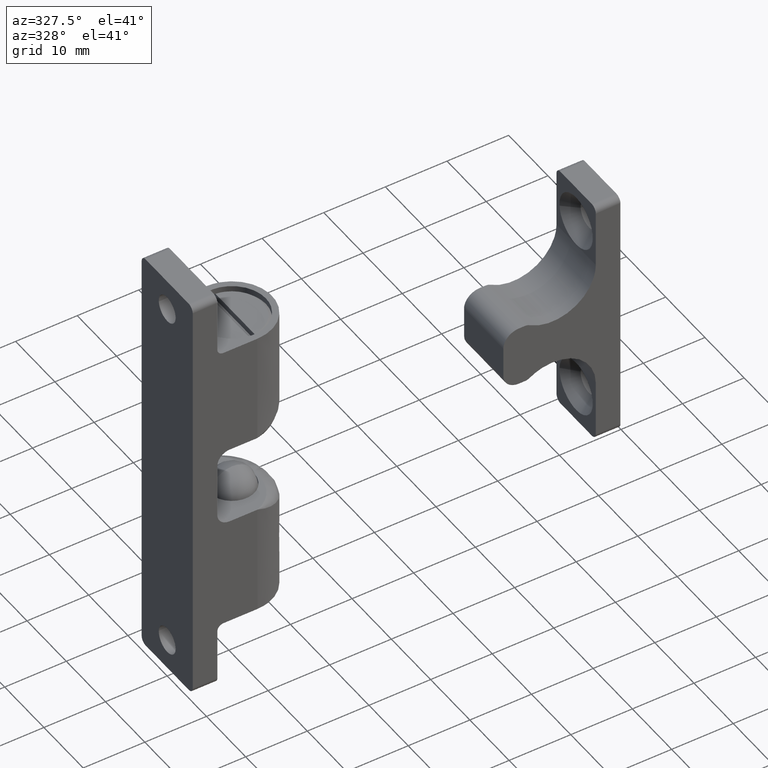
[diagram: clean part render]
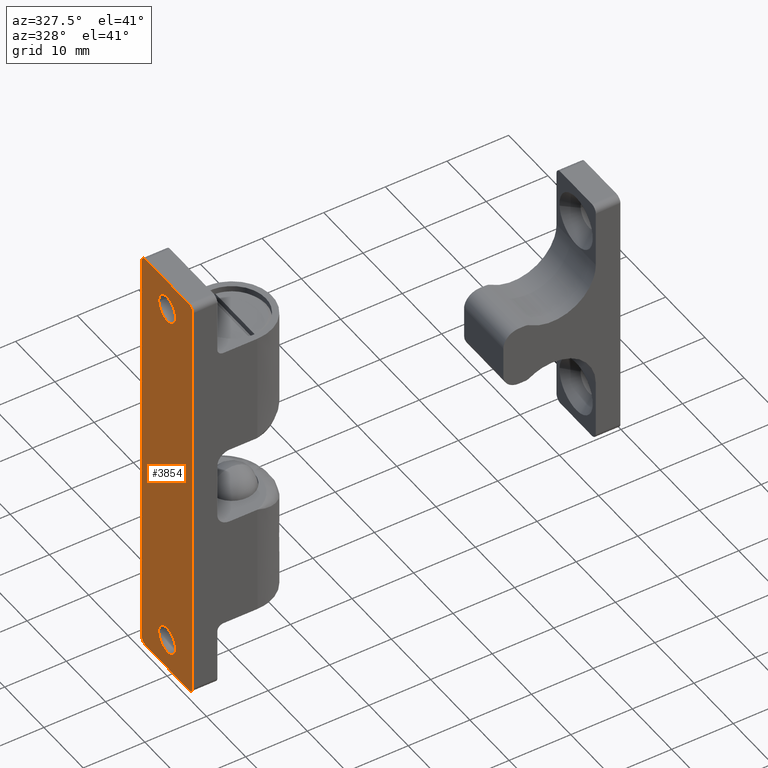
[diagram: same view with one face highlighted and labeled with its STEP entity id]
A machine part, auxiliary view. The second image highlights one B-rep face of the part: STEP entity #3854.
In plain terms, the highlighted face is a freeform B-spline surface patch.
Its self-contained STEP definition (entity closure, byte-faithful):
#3025=CARTESIAN_POINT('',(2.775558E-017,2.145989816606143,-29.868745639985821));
#3026=VERTEX_POINT('',#3025);
#3027=CARTESIAN_POINT('',(0.0,0.0,-32.149999999999999));
#3028=VERTEX_POINT('',#3027);
#3029=CARTESIAN_POINT('',(0.0,2.145989816606143,-29.868745639985818));
#3030=CARTESIAN_POINT('',(0.0,2.150000000000000,-29.934311558900898));
#3031=CARTESIAN_POINT('',(0.0,2.150000000000000,-30.0));
#3032=CARTESIAN_POINT('',(0.0,2.150000000000000,-32.149999999999999));
#3033=CARTESIAN_POINT('',(0.0,0.0,-32.149999999999999));
#3041=(BOUNDED_CURVE()B_SPLINE_CURVE(2,(#3029,#3030,#3031,#3032,#3033),.UNSPECIFIED.,.F.,.U.)B_SPLINE_CURVE_WITH_KNOTS((3,2,3),(0.239332962240823,0.250000000000000,0.500000000000000),.UNSPECIFIED.)CURVE()GEOMETRIC_REPRESENTATION_ITEM()RATIONAL_B_SPLINE_CURVE((0.976072041670748,0.987502787902040,1.0,0.707106781186547,1.0))REPRESENTATION_ITEM(''));
#3042=EDGE_CURVE('',#3026,#3028,#3041,.T.);
#3044=CARTESIAN_POINT('',(2.775558E-017,-2.145989816606143,-30.131254360014179));
#3045=VERTEX_POINT('',#3044);
#3046=CARTESIAN_POINT('',(0.0,0.0,-32.149999999999999));
#3047=CARTESIAN_POINT('',(0.0,-2.022518043833800,-32.149999999999991));
#3048=CARTESIAN_POINT('',(0.0,-2.145989816606144,-30.131254360014175));
#3056=(BOUNDED_CURVE()B_SPLINE_CURVE(2,(#3046,#3047,#3048),.UNSPECIFIED.,.F.,.U.)B_SPLINE_CURVE_WITH_KNOTS((3,3),(0.500000000000000,0.739332962240823),.UNSPECIFIED.)CURVE()GEOMETRIC_REPRESENTATION_ITEM()RATIONAL_B_SPLINE_CURVE((1.0,0.719603993284507,0.976072041670748))REPRESENTATION_ITEM(''));
#3057=EDGE_CURVE('',#3028,#3045,#3056,.T.);
#3124=CARTESIAN_POINT('',(0.0,0.0,-27.850000000000001));
#3125=VERTEX_POINT('',#3124);
#3126=CARTESIAN_POINT('',(0.0,0.0,-27.850000000000001));
#3127=CARTESIAN_POINT('',(0.0,2.022518043833797,-27.850000000000009));
#3128=CARTESIAN_POINT('',(0.0,2.145989816606143,-29.868745639985821));
#3136=(BOUNDED_CURVE()B_SPLINE_CURVE(2,(#3126,#3127,#3128),.UNSPECIFIED.,.F.,.U.)B_SPLINE_CURVE_WITH_KNOTS((3,3),(0.0,0.239332962240823),.UNSPECIFIED.)CURVE()GEOMETRIC_REPRESENTATION_ITEM()RATIONAL_B_SPLINE_CURVE((1.0,0.719603993284507,0.976072041670748))REPRESENTATION_ITEM(''));
#3137=EDGE_CURVE('',#3125,#3026,#3136,.T.);
#3171=CARTESIAN_POINT('',(0.0,-2.145989816606144,-30.131254360014182));
#3172=CARTESIAN_POINT('',(0.0,-2.150000000000000,-30.065688441099109));
#3173=CARTESIAN_POINT('',(0.0,-2.150000000000000,-30.0));
#3174=CARTESIAN_POINT('',(0.0,-2.150000000000000,-27.850000000000005));
#3175=CARTESIAN_POINT('',(0.0,0.0,-27.850000000000001));
#3183=(BOUNDED_CURVE()B_SPLINE_CURVE(2,(#3171,#3172,#3173,#3174,#3175),.UNSPECIFIED.,.F.,.U.)B_SPLINE_CURVE_WITH_KNOTS((3,2,3),(0.739332962240824,0.750000000000000,1.0),.UNSPECIFIED.)CURVE()GEOMETRIC_REPRESENTATION_ITEM()RATIONAL_B_SPLINE_CURVE((0.976072041670749,0.987502787902041,1.0,0.707106781186547,1.0))REPRESENTATION_ITEM(''));
#3184=EDGE_CURVE('',#3045,#3125,#3183,.T.);
#3354=CARTESIAN_POINT('',(2.775558E-017,2.143372267502470,29.831312943883301));
#3355=VERTEX_POINT('',#3354);
#3361=CARTESIAN_POINT('',(0.0,0.0,27.850000000000001));
#3362=VERTEX_POINT('',#3361);
#3363=CARTESIAN_POINT('',(0.0,0.0,27.850000000000001));
#3364=CARTESIAN_POINT('',(0.0,1.987439556784401,27.850000000000001));
#3365=CARTESIAN_POINT('',(0.0,2.143372267502470,29.831312943883294));
#3373=(BOUNDED_CURVE()B_SPLINE_CURVE(2,(#3363,#3364,#3365),.UNSPECIFIED.,.F.,.U.)B_SPLINE_CURVE_WITH_KNOTS((3,3),(0.0,0.236331300608626),.UNSPECIFIED.)CURVE()GEOMETRIC_REPRESENTATION_ITEM()RATIONAL_B_SPLINE_CURVE((1.0,0.723120658633479,0.969723356121436))REPRESENTATION_ITEM(''));
#3374=EDGE_CURVE('',#3362,#3355,#3373,.T.);
#3376=CARTESIAN_POINT('',(2.775558E-017,-2.143372267502470,30.168687056116699));
#3377=VERTEX_POINT('',#3376);
#3378=CARTESIAN_POINT('',(0.0,-2.143372267502470,30.168687056116706));
#3379=CARTESIAN_POINT('',(0.0,-2.150000000000000,30.084473730218111));
#3380=CARTESIAN_POINT('',(0.0,-2.150000000000000,30.0));
#3381=CARTESIAN_POINT('',(0.0,-2.150000000000000,27.850000000000005));
#3382=CARTESIAN_POINT('',(0.0,0.0,27.850000000000001));
#3390=(BOUNDED_CURVE()B_SPLINE_CURVE(2,(#3378,#3379,#3380,#3381,#3382),.UNSPECIFIED.,.F.,.U.)B_SPLINE_CURVE_WITH_KNOTS((3,2,3),(0.736331300608626,0.750000000000000,1.0),.UNSPECIFIED.)CURVE()GEOMETRIC_REPRESENTATION_ITEM()RATIONAL_B_SPLINE_CURVE((0.969723356121436,0.983986122553068,1.0,0.707106781186547,1.0))REPRESENTATION_ITEM(''));
#3391=EDGE_CURVE('',#3377,#3362,#3390,.T.);
#3497=CARTESIAN_POINT('',(0.0,0.0,32.149999999999999));
#3498=VERTEX_POINT('',#3497);
#3499=CARTESIAN_POINT('',(0.0,0.0,32.149999999999999));
#3500=CARTESIAN_POINT('',(0.0,-1.987439556784404,32.149999999999999));
#3501=CARTESIAN_POINT('',(0.0,-2.143372267502470,30.168687056116699));
#3509=(BOUNDED_CURVE()B_SPLINE_CURVE(2,(#3499,#3500,#3501),.UNSPECIFIED.,.F.,.U.)B_SPLINE_CURVE_WITH_KNOTS((3,3),(0.500000000000000,0.736331300608627),.UNSPECIFIED.)CURVE()GEOMETRIC_REPRESENTATION_ITEM()RATIONAL_B_SPLINE_CURVE((1.0,0.723120658633479,0.969723356121436))REPRESENTATION_ITEM(''));
#3510=EDGE_CURVE('',#3498,#3377,#3509,.T.);
#3512=CARTESIAN_POINT('',(0.0,2.143372267502470,29.831312943883294));
#3513=CARTESIAN_POINT('',(0.0,2.150000000000000,29.915526269781889));
#3514=CARTESIAN_POINT('',(0.0,2.150000000000000,30.0));
#3515=CARTESIAN_POINT('',(0.0,2.150000000000000,32.149999999999999));
#3516=CARTESIAN_POINT('',(0.0,0.0,32.149999999999999));
#3524=(BOUNDED_CURVE()B_SPLINE_CURVE(2,(#3512,#3513,#3514,#3515,#3516),.UNSPECIFIED.,.F.,.U.)B_SPLINE_CURVE_WITH_KNOTS((3,2,3),(0.236331300608626,0.250000000000000,0.500000000000000),.UNSPECIFIED.)CURVE()GEOMETRIC_REPRESENTATION_ITEM()RATIONAL_B_SPLINE_CURVE((0.969723356121436,0.983986122553068,1.0,0.707106781186547,1.0))REPRESENTATION_ITEM(''));
#3525=EDGE_CURVE('',#3355,#3498,#3524,.T.);
#3660=CARTESIAN_POINT('',(-1.010300E-015,5.500000000000000,35.0));
#3661=VERTEX_POINT('',#3660);
#3662=CARTESIAN_POINT('',(1.010300E-015,-5.500000000000000,35.0));
#3663=VERTEX_POINT('',#3662);
#3664=CARTESIAN_POINT('',(-1.010300E-015,5.500000000000000,35.0));
#3665=CARTESIAN_POINT('',(1.010300E-015,-5.500000000000000,35.0));
#3666=QUASI_UNIFORM_CURVE('',1,(#3664,#3665),.UNSPECIFIED.,.F.,.U.);
#3667=EDGE_CURVE('',#3661,#3663,#3666,.T.);
#3755=CARTESIAN_POINT('',(-1.193991E-015,-7.149349974803479,38.496499864326417));
#3756=CARTESIAN_POINT('',(-1.193991E-015,7.149350323490651,38.496499864326417));
#3757=CARTESIAN_POINT('',(-1.193991E-015,-7.149349974803479,-38.496501741872727));
#3758=CARTESIAN_POINT('',(-1.193991E-015,7.149350323490651,-38.496501741872727));
#3759=B_SPLINE_SURFACE_WITH_KNOTS('',1,1,((#3755,#3757),(#3756,#3758)),.UNSPECIFIED.,.F.,.F.,.U.,(2,2),(2,2),(0.0,14.298700298294129),(0.0,76.993001606199158),.UNSPECIFIED.);
#3760=CARTESIAN_POINT('',(-1.776357E-015,6.500000000000000,-34.0));
#3761=VERTEX_POINT('',#3760);
#3762=CARTESIAN_POINT('',(-1.776357E-015,6.500000000000000,34.0));
#3763=VERTEX_POINT('',#3762);
#3764=CARTESIAN_POINT('',(-1.776357E-015,6.500000000000000,-34.0));
#3765=CARTESIAN_POINT('',(-1.776357E-015,6.500000000000000,34.0));
#3766=QUASI_UNIFORM_CURVE('',1,(#3764,#3765),.UNSPECIFIED.,.F.,.U.);
#3767=EDGE_CURVE('',#3761,#3763,#3766,.T.);
#3768=ORIENTED_EDGE('',*,*,#3767,.F.);
#3769=CARTESIAN_POINT('',(-1.010300E-015,5.500000000000000,-35.0));
#3770=VERTEX_POINT('',#3769);
#3771=CARTESIAN_POINT('',(-8.673617E-016,6.500000000000000,-34.0));
#3772=CARTESIAN_POINT('',(-8.673617E-016,6.500000000000001,-34.999999999999993));
#3773=CARTESIAN_POINT('',(-8.673617E-016,5.500000000000000,-35.0));
#3781=(BOUNDED_CURVE()B_SPLINE_CURVE(2,(#3771,#3772,#3773),.UNSPECIFIED.,.F.,.U.)CURVE()GEOMETRIC_REPRESENTATION_ITEM()QUASI_UNIFORM_CURVE()RATIONAL_B_SPLINE_CURVE((1.0,0.707106781186548,1.0))REPRESENTATION_ITEM(''));
#3782=EDGE_CURVE('',#3761,#3770,#3781,.T.);
#3783=ORIENTED_EDGE('',*,*,#3782,.T.);
#3784=CARTESIAN_POINT('',(1.010300E-015,-5.500000000000000,-35.0));
#3785=VERTEX_POINT('',#3784);
#3786=CARTESIAN_POINT('',(-1.010300E-015,5.500000000000000,-35.0));
#3787=CARTESIAN_POINT('',(1.010300E-015,-5.500000000000000,-35.0));
#3788=QUASI_UNIFORM_CURVE('',1,(#3786,#3787),.UNSPECIFIED.,.F.,.U.);
#3789=EDGE_CURVE('',#3770,#3785,#3788,.T.);
#3790=ORIENTED_EDGE('',*,*,#3789,.T.);
#3791=CARTESIAN_POINT('',(1.193991E-015,-6.500000000000000,-34.0));
#3792=VERTEX_POINT('',#3791);
#3793=CARTESIAN_POINT('',(1.010300E-015,-5.500000000000000,-35.0));
#3794=CARTESIAN_POINT('',(1.010300E-015,-6.500000000000001,-34.999999999999993));
#3795=CARTESIAN_POINT('',(1.010300E-015,-6.500000000000000,-34.0));
#3803=(BOUNDED_CURVE()B_SPLINE_CURVE(2,(#3793,#3794,#3795),.UNSPECIFIED.,.F.,.U.)CURVE()GEOMETRIC_REPRESENTATION_ITEM()QUASI_UNIFORM_CURVE()RATIONAL_B_SPLINE_CURVE((1.0,0.707106781186548,1.0))REPRESENTATION_ITEM(''));
#3804=EDGE_CURVE('',#3785,#3792,#3803,.T.);
#3805=ORIENTED_EDGE('',*,*,#3804,.T.);
#3806=CARTESIAN_POINT('',(1.193991E-015,-6.500000000000000,34.0));
#3807=VERTEX_POINT('',#3806);
#3808=CARTESIAN_POINT('',(1.193991E-015,-6.500000000000000,-34.0));
#3809=CARTESIAN_POINT('',(1.193991E-015,-6.500000000000000,34.0));
#3810=QUASI_UNIFORM_CURVE('',1,(#3808,#3809),.UNSPECIFIED.,.F.,.U.);
#3811=EDGE_CURVE('',#3792,#3807,#3810,.T.);
#3812=ORIENTED_EDGE('',*,*,#3811,.T.);
#3813=CARTESIAN_POINT('',(1.010300E-015,-6.500000000000000,34.0));
#3814=CARTESIAN_POINT('',(1.010300E-015,-6.500000000000001,34.999999999999993));
#3815=CARTESIAN_POINT('',(1.010300E-015,-5.500000000000000,35.0));
#3823=(BOUNDED_CURVE()B_SPLINE_CURVE(2,(#3813,#3814,#3815),.UNSPECIFIED.,.F.,.U.)CURVE()GEOMETRIC_REPRESENTATION_ITEM()QUASI_UNIFORM_CURVE()RATIONAL_B_SPLINE_CURVE((1.0,0.707106781186548,1.0))REPRESENTATION_ITEM(''));
#3824=EDGE_CURVE('',#3807,#3663,#3823,.T.);
#3825=ORIENTED_EDGE('',*,*,#3824,.T.);
#3826=ORIENTED_EDGE('',*,*,#3667,.F.);
#3827=CARTESIAN_POINT('',(-1.010300E-015,5.500000000000000,35.0));
#3828=CARTESIAN_POINT('',(-1.010300E-015,6.500000000000001,34.999999999999993));
#3829=CARTESIAN_POINT('',(-1.010300E-015,6.500000000000000,34.0));
#3837=(BOUNDED_CURVE()B_SPLINE_CURVE(2,(#3827,#3828,#3829),.UNSPECIFIED.,.F.,.U.)CURVE()GEOMETRIC_REPRESENTATION_ITEM()QUASI_UNIFORM_CURVE()RATIONAL_B_SPLINE_CURVE((1.0,0.707106781186548,1.0))REPRESENTATION_ITEM(''));
#3838=EDGE_CURVE('',#3661,#3763,#3837,.T.);
#3839=ORIENTED_EDGE('',*,*,#3838,.T.);
#3840=EDGE_LOOP('',(#3768,#3783,#3790,#3805,#3812,#3825,#3826,#3839));
#3841=FACE_OUTER_BOUND('',#3840,.T.);
#3842=ORIENTED_EDGE('',*,*,#3510,.T.);
#3843=ORIENTED_EDGE('',*,*,#3391,.T.);
#3844=ORIENTED_EDGE('',*,*,#3374,.T.);
#3845=ORIENTED_EDGE('',*,*,#3525,.T.);
#3846=EDGE_LOOP('',(#3842,#3843,#3844,#3845));
#3847=FACE_BOUND('',#3846,.T.);
#3848=ORIENTED_EDGE('',*,*,#3057,.F.);
#3849=ORIENTED_EDGE('',*,*,#3042,.F.);
#3850=ORIENTED_EDGE('',*,*,#3137,.F.);
#3851=ORIENTED_EDGE('',*,*,#3184,.F.);
#3852=EDGE_LOOP('',(#3848,#3849,#3850,#3851));
#3853=FACE_BOUND('',#3852,.T.);
#3854=ADVANCED_FACE('',(#3841,#3847,#3853),#3759,.T.);